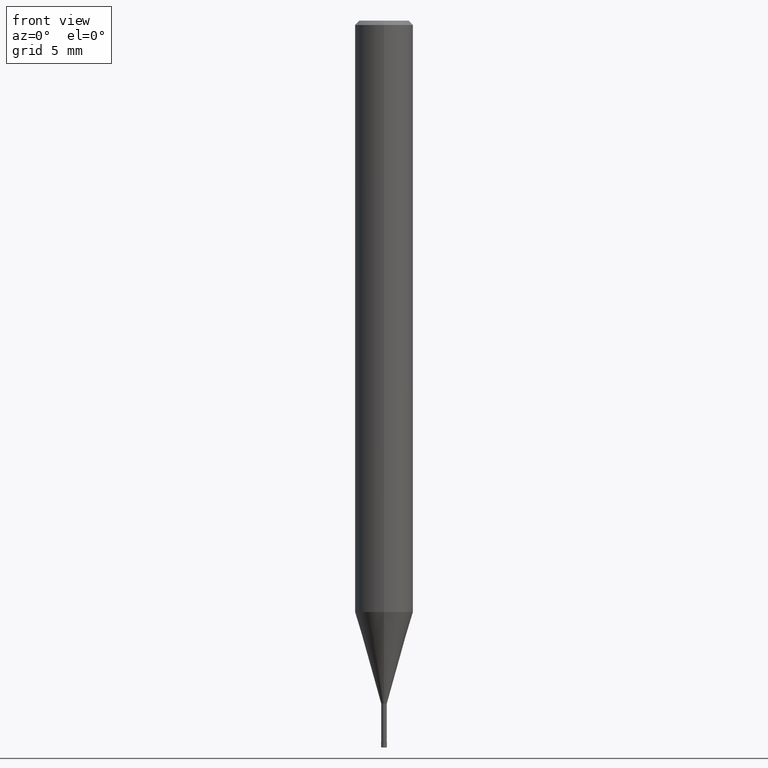
[diagram: clean part render]
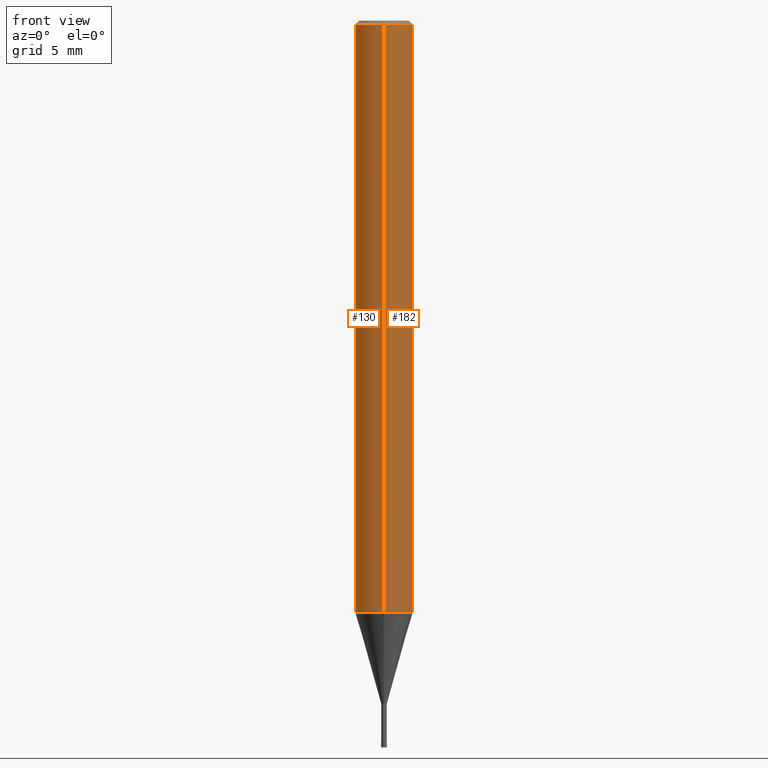
[diagram: same view with one multi-face feature highlighted, each face labeled with its STEP entity id]
A machine part, front view. The highlighted faces form ONE feature: a constant-radius fillet chain: 2 tangent blend faces with common blend radius 2 mm. The faces share edges in the B-rep.
Their STEP definitions:
[1] entity #130 (Cylinder):
#130=ADVANCED_FACE('',(#291),#292,.T.);
#134=EDGE_CURVE('',#162,#218,#296,.T.);
#158=VERTEX_POINT('',#323);
#162=VERTEX_POINT('',#328);
#184=EDGE_CURVE('',#158,#162,#354,.T.);
#206=VERTEX_POINT('',#377);
#212=EDGE_CURVE('',#218,#206,#383,.T.);
#214=EDGE_CURVE('',#158,#206,#385,.T.);
#218=VERTEX_POINT('',#389);
#291=FACE_OUTER_BOUND('',#456,.T.);
#292=CYLINDRICAL_SURFACE('',#457,2.0);
#296=CIRCLE('',#464,2.0);
#323=CARTESIAN_POINT('',(2.44921270764475E-016,-2.0,-40.688));
#328=CARTESIAN_POINT('',(2.44921270764475E-016,-2.0,-0.299999999999997));
#354=LINE('',#535,#536);
#377=CARTESIAN_POINT('',(0.0,2.0,-40.688));
#383=LINE('',#576,#577);
#385=CIRCLE('',#580,2.0);
#389=CARTESIAN_POINT('',(0.0,2.0,-0.299999999999997));
#456=EDGE_LOOP('',(#666,#667,#668,#669));
#457=AXIS2_PLACEMENT_3D('',#670,#671,#672);
#464=AXIS2_PLACEMENT_3D('',#674,#675,#676);
#535=CARTESIAN_POINT('',(2.44921270764475E-016,-2.0,-20.494));
#536=VECTOR('',#761,1.0);
#576=CARTESIAN_POINT('',(-2.44921270764475E-016,2.0,-20.494));
#577=VECTOR('',#785,1.0);
#580=AXIS2_PLACEMENT_3D('',#786,#787,#788);
#666=ORIENTED_EDGE('',*,*,#212,.T.);
#667=ORIENTED_EDGE('',*,*,#214,.F.);
#668=ORIENTED_EDGE('',*,*,#184,.T.);
#669=ORIENTED_EDGE('',*,*,#134,.T.);
#670=CARTESIAN_POINT('',(0.0,0.0,-20.494));
#671=DIRECTION('',(-0.0,-0.0,1.0));
#672=DIRECTION('',(0.0,1.0,0.0));
#674=CARTESIAN_POINT('',(0.0,0.0,-0.299999999999997));
#675=DIRECTION('',(0.0,0.0,-1.0));
#676=DIRECTION('',(0.0,1.0,0.0));
#761=DIRECTION('',(-0.0,-0.0,1.0));
#785=DIRECTION('',(0.0,0.0,-1.0));
#786=CARTESIAN_POINT('',(0.0,0.0,-40.688));
#787=DIRECTION('',(0.0,0.0,-1.0));
#788=DIRECTION('',(0.0,1.0,0.0));
[2] entity #182 (Cylinder):
#158=VERTEX_POINT('',#323);
#162=VERTEX_POINT('',#328);
#182=ADVANCED_FACE('',(#351),#352,.T.);
#184=EDGE_CURVE('',#158,#162,#354,.T.);
#196=EDGE_CURVE('',#206,#158,#367,.T.);
#206=VERTEX_POINT('',#377);
#212=EDGE_CURVE('',#218,#206,#383,.T.);
#218=VERTEX_POINT('',#389);
#220=EDGE_CURVE('',#218,#162,#391,.T.);
#323=CARTESIAN_POINT('',(2.44921270764475E-016,-2.0,-40.688));
#328=CARTESIAN_POINT('',(2.44921270764475E-016,-2.0,-0.299999999999997));
#351=FACE_OUTER_BOUND('',#531,.T.);
#352=CYLINDRICAL_SURFACE('',#532,2.0);
#354=LINE('',#535,#536);
#367=CIRCLE('',#552,2.0);
#377=CARTESIAN_POINT('',(0.0,2.0,-40.688));
#383=LINE('',#576,#577);
#389=CARTESIAN_POINT('',(0.0,2.0,-0.299999999999997));
#391=CIRCLE('',#588,2.0);
#531=EDGE_LOOP('',(#754,#755,#756,#757));
#532=AXIS2_PLACEMENT_3D('',#758,#759,#760);
#535=CARTESIAN_POINT('',(2.44921270764475E-016,-2.0,-20.494));
#536=VECTOR('',#761,1.0);
#552=AXIS2_PLACEMENT_3D('',#776,#777,#778);
#576=CARTESIAN_POINT('',(-2.44921270764475E-016,2.0,-20.494));
#577=VECTOR('',#785,1.0);
#588=AXIS2_PLACEMENT_3D('',#792,#793,#794);
#754=ORIENTED_EDGE('',*,*,#212,.F.);
#755=ORIENTED_EDGE('',*,*,#220,.T.);
#756=ORIENTED_EDGE('',*,*,#184,.F.);
#757=ORIENTED_EDGE('',*,*,#196,.F.);
#758=CARTESIAN_POINT('',(0.0,0.0,-20.494));
#759=DIRECTION('',(-0.0,-0.0,1.0));
#760=DIRECTION('',(0.0,1.0,0.0));
#761=DIRECTION('',(-0.0,-0.0,1.0));
#776=CARTESIAN_POINT('',(0.0,0.0,-40.688));
#777=DIRECTION('',(0.0,0.0,-1.0));
#778=DIRECTION('',(0.0,1.0,0.0));
#785=DIRECTION('',(0.0,0.0,-1.0));
#792=CARTESIAN_POINT('',(0.0,0.0,-0.299999999999997));
#793=DIRECTION('',(0.0,0.0,-1.0));
#794=DIRECTION('',(0.0,1.0,0.0));